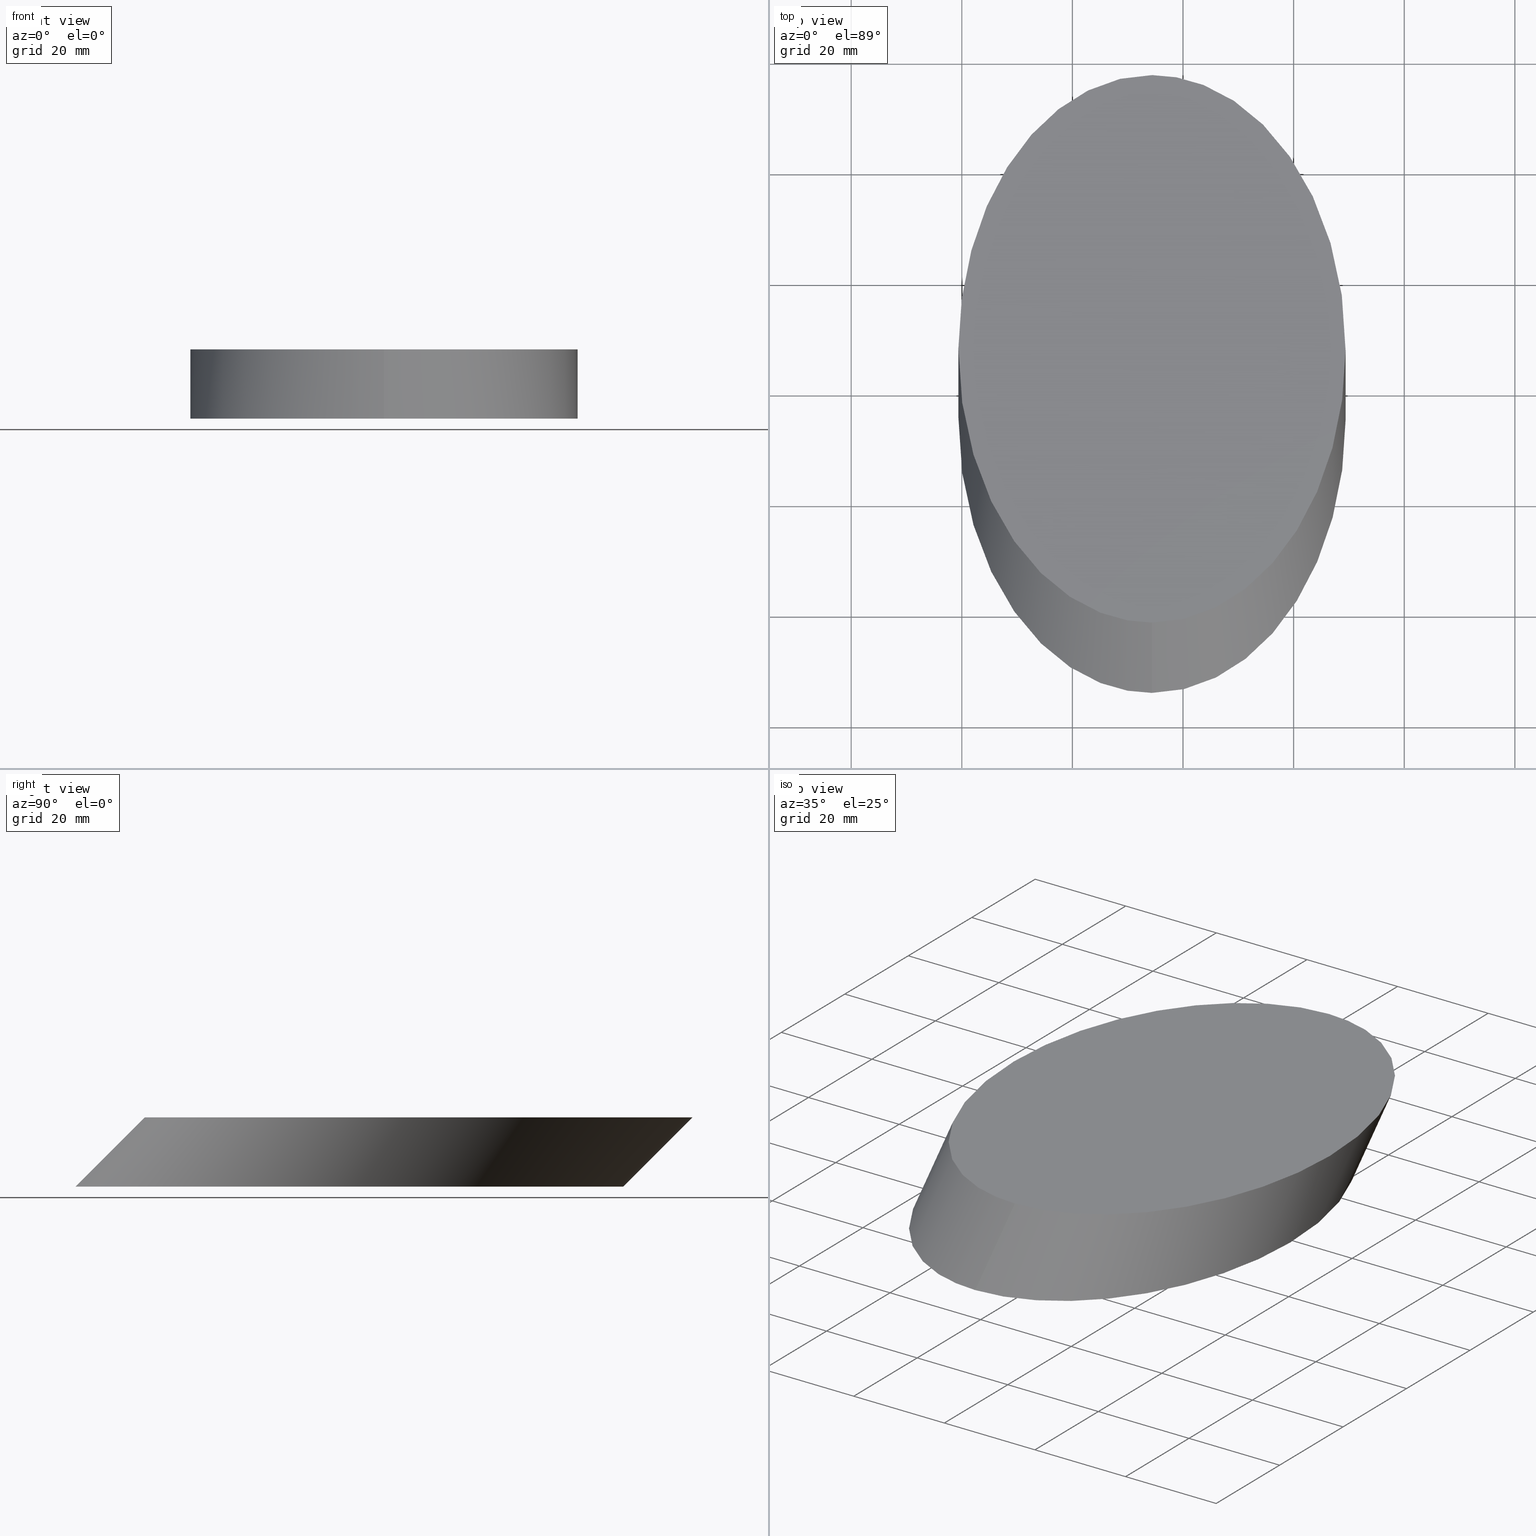
[diagram: canonical four-view strip — front | top / right | iso, engineering-drawing reading convention]
A machine part, canonical four-view strip (front | top / right | iso — engineering-drawing reading convention). The complete STEP part file that produces these views, byte-faithful:
ISO-10303-21;
HEADER;
FILE_DESCRIPTION (( 'STEP AP214' ),
    '1' );
FILE_NAME ('290006.STEP',
    '2019-08-12T02:05:35',
    ( '' ),
    ( '' ),
    'SwSTEP 2.0',
    'SolidWorks 2016',
    '' );
FILE_SCHEMA (( 'AUTOMOTIVE_DESIGN' ));
ENDSEC;

DATA;
#1 = MECHANICAL_DESIGN_GEOMETRIC_PRESENTATION_REPRESENTATION (  '', ( #143 ), #23 ) ;
#2 =( NAMED_UNIT ( * ) SI_UNIT ( $, .STERADIAN. ) SOLID_ANGLE_UNIT ( ) );
#3 = CARTESIAN_POINT ( 'NONE',  ( 54.39238298171605400, 85.29387153032210700, 0.0000000000000000000 ) ) ;
#4 = UNCERTAINTY_MEASURE_WITH_UNIT (LENGTH_MEASURE( 1.000000000000000100E-005 ), #102, 'distance_accuracy_value', 'NONE');
#5 = DIRECTION ( 'NONE',  ( 0.0000000000000000000, -0.7071067811865499000, -0.7071067811865452400 ) ) ;
#6 = APPLICATION_PROTOCOL_DEFINITION ( 'draft international standard', 'automotive_design', 1998, #96 ) ;
#7 = ORIENTED_EDGE ( 'NONE', *, *, #105, .F. ) ;
#8 = EDGE_CURVE ( 'NONE', #122, #132, #87, .T. ) ;
#9 = AXIS2_PLACEMENT_3D ( 'NONE', #16, #142, #119 ) ;
#10 = FACE_OUTER_BOUND ( 'NONE', #114, .T. ) ;
#11 = ORIENTED_EDGE ( 'NONE', *, *, #125, .F. ) ;
#12 = DIRECTION ( 'NONE',  ( 1.000000000000000000, 0.0000000000000000000, -0.0000000000000000000 ) ) ;
#13 = CARTESIAN_POINT ( 'NONE',  ( 54.39238298171604700, -13.71612846967790100, 0.0000000000000000000 ) ) ;
#14 = CARTESIAN_POINT ( 'NONE',  ( 54.39238298171605400, 35.78887153032210500, 0.0000000000000000000 ) ) ;
#15 = CARTESIAN_POINT ( 'NONE',  ( 54.39238298171605400, 97.79551942170030500, 12.50164789137812000 ) ) ;
#16 = CARTESIAN_POINT ( 'NONE',  ( 0.0000000000000000000, 0.0000000000000000000, 0.0000000000000000000 ) ) ;
#17 = AXIS2_PLACEMENT_3D ( 'NONE', #14, #24, #12 ) ;
#18 = VECTOR ( 'NONE', #30, 1000.000000000000100 ) ;
#19 =( LENGTH_UNIT ( ) NAMED_UNIT ( * ) SI_UNIT ( .MILLI., .METRE. ) );
#20 = ADVANCED_BREP_SHAPE_REPRESENTATION ( '290006', ( #110, #9 ), #81 ) ;
#21 = EDGE_LOOP ( 'NONE', ( #7, #25, #145, #86 ) ) ;
#22 = CLOSED_SHELL ( 'NONE', ( #94, #106, #98, #52 ) ) ;
#23 =( GEOMETRIC_REPRESENTATION_CONTEXT ( 3 ) GLOBAL_UNCERTAINTY_ASSIGNED_CONTEXT ( ( #141 ) ) GLOBAL_UNIT_ASSIGNED_CONTEXT ( ( #28, #72, #2 ) ) REPRESENTATION_CONTEXT ( 'NONE', 'WORKASPACE' ) );
#24 = DIRECTION ( 'NONE',  ( 0.0000000000000000000, 0.0000000000000000000, 1.000000000000000000 ) ) ;
#25 = ORIENTED_EDGE ( 'NONE', *, *, #125, .T. ) ;
#26 = CARTESIAN_POINT ( 'NONE',  ( -15.60761701828394100, 97.79551942170032000, 12.50164789137812200 ) ) ;
#27 = CARTESIAN_POINT ( 'NONE',  ( 124.3923829817160400, 97.79551942170032000, 12.50164789137812200 ) ) ;
#28 =( LENGTH_UNIT ( ) NAMED_UNIT ( * ) SI_UNIT ( .MILLI., .METRE. ) );
#29 = ORIENTED_EDGE ( 'NONE', *, *, #8, .T. ) ;
#30 = DIRECTION ( 'NONE',  ( 0.0000000000000000000, -0.7071067811865499000, -0.7071067811865452400 ) ) ;
#31 = APPLICATION_CONTEXT ( 'automotive_design' ) ;
#32 = COLOUR_RGB ( '',1.000000000000000000, 1.000000000000000000, 1.000000000000000000 ) ;
#33 = FILL_AREA_STYLE ('',( #91 ) ) ;
#34 = FACE_OUTER_BOUND ( 'NONE', #134, .T. ) ;
#35 = CARTESIAN_POINT ( 'NONE',  ( 54.39238298171604700, -1.214480578299696800, 12.50164789137812200 ) ) ;
#36 = CARTESIAN_POINT ( 'NONE',  ( 54.39238298171605400, 97.79551942170030500, 12.50164789137812000 ) ) ;
#37 =( BOUNDED_SURFACE ( )  B_SPLINE_SURFACE ( 3, 1, ( 
 ( #35, #148 ),
 ( #109, #57 ),
 ( #88, #38 ),
 ( #126, #111 ) ),
 .UNSPECIFIED., .F., .F., .F. ) 
 B_SPLINE_SURFACE_WITH_KNOTS ( ( 4, 4 ),
 ( 2, 2 ),
 ( 0.0000000000000000000, 1.000000000000000000 ),
 ( 0.0000000000000000000, 1.000000000000000000 ),
 .UNSPECIFIED. ) 
 GEOMETRIC_REPRESENTATION_ITEM ( )  RATIONAL_B_SPLINE_SURFACE ( (
 ( 1.000000000000000000, 1.000000000000000000),
 ( 0.3333333333333333700, 0.3333333333333333700),
 ( 0.3333333333333333700, 0.3333333333333333700),
 ( 1.000000000000000000, 1.000000000000000000) ) ) 
 REPRESENTATION_ITEM ( '' )  SURFACE ( )  );
#38 = CARTESIAN_POINT ( 'NONE',  ( 124.3923829817160400, 85.29387153032210700, -2.602085213965210200E-015 ) ) ;
#39 = FILL_AREA_STYLE_COLOUR ( '', #32 ) ;
#40 = STYLED_ITEM ( 'NONE', ( #68 ), #20 ) ;
#41 = CARTESIAN_POINT ( 'NONE',  ( 54.39238298171604700, -13.71612846967790100, 0.0000000000000000000 ) ) ;
#42 = VERTEX_POINT ( 'NONE', #13 ) ;
#43 = CARTESIAN_POINT ( 'NONE',  ( 54.39238298171605400, 97.79551942170030500, 12.50164789137812000 ) ) ;
#44 = PRODUCT_CONTEXT ( 'NONE', #96, 'mechanical' ) ;
#45 =( BOUNDED_CURVE ( )  B_SPLINE_CURVE ( 3, ( #41, #104, #130, #3 ),
 .UNSPECIFIED., .F., .T. ) 
 B_SPLINE_CURVE_WITH_KNOTS ( ( 4, 4 ),
 ( 3.141592653589793100, 6.283185307179586200 ),
 .UNSPECIFIED. ) 
 CURVE ( )  GEOMETRIC_REPRESENTATION_ITEM ( )  RATIONAL_B_SPLINE_CURVE ( ( 1.000000000000000000, 0.3333333333333333700, 0.3333333333333333700, 1.000000000000000000 ) ) 
 REPRESENTATION_ITEM ( '' )  );
#46 = DIRECTION ( 'NONE',  ( 1.000000000000000000, 0.0000000000000000000, -0.0000000000000000000 ) ) ;
#47 = SURFACE_SIDE_STYLE ('',( #61 ) ) ;
#48 = CARTESIAN_POINT ( 'NONE',  ( 54.39238298171604700, -1.214480578299696800, 12.50164789137812000 ) ) ;
#49 = CARTESIAN_POINT ( 'NONE',  ( 54.39238298171604700, -1.214480578299696800, 12.50164789137812000 ) ) ;
#50 = SURFACE_STYLE_FILL_AREA ( #33 ) ;
#51 = VERTEX_POINT ( 'NONE', #136 ) ;
#52 = ADVANCED_FACE ( 'NONE', ( #34 ), #147, .F. ) ;
#53 = LINE ( 'NONE', #15, #70 ) ;
#54 = CARTESIAN_POINT ( 'NONE',  ( -15.60761701828394100, 97.79551942170032000, 12.50164789137812200 ) ) ;
#55 = PRODUCT_DEFINITION_FORMATION_WITH_SPECIFIED_SOURCE ( '�κ�', '', #67, .NOT_KNOWN. ) ;
#56 = ORIENTED_EDGE ( 'NONE', *, *, #8, .F. ) ;
#57 = CARTESIAN_POINT ( 'NONE',  ( 124.3923829817160400, -13.71612846967791600, -2.602085213965210200E-015 ) ) ;
#58 = SURFACE_STYLE_USAGE ( .BOTH. , #47 ) ;
#59 =( GEOMETRIC_REPRESENTATION_CONTEXT ( 3 ) GLOBAL_UNCERTAINTY_ASSIGNED_CONTEXT ( ( #62 ) ) GLOBAL_UNIT_ASSIGNED_CONTEXT ( ( #19, #93, #76 ) ) REPRESENTATION_CONTEXT ( 'NONE', 'WORKASPACE' ) );
#60 = CARTESIAN_POINT ( 'NONE',  ( 124.3923829817160400, -1.214480578299708800, 12.50164789137812200 ) ) ;
#61 = SURFACE_STYLE_FILL_AREA ( #112 ) ;
#62 = UNCERTAINTY_MEASURE_WITH_UNIT (LENGTH_MEASURE( 1.000000000000000100E-005 ), #19, 'distance_accuracy_value', 'NONE');
#63 = SURFACE_STYLE_USAGE ( .BOTH. , #64 ) ;
#64 = SURFACE_SIDE_STYLE ('',( #50 ) ) ;
#65 = CARTESIAN_POINT ( 'NONE',  ( 54.39238298171604700, -1.214480578299696800, 12.50164789137812000 ) ) ;
#66 = CARTESIAN_POINT ( 'NONE',  ( -15.60761701828394100, 85.29387153032210700, 0.0000000000000000000 ) ) ;
#67 = PRODUCT ( '290006', '290006', '', ( #44 ) ) ;
#68 = PRESENTATION_STYLE_ASSIGNMENT (( #63 ) ) ;
#69 = CARTESIAN_POINT ( 'NONE',  ( 54.39238298171604700, -13.71612846967790100, 0.0000000000000000000 ) ) ;
#70 = VECTOR ( 'NONE', #5, 1000.000000000000100 ) ;
#71 = ORIENTED_EDGE ( 'NONE', *, *, #137, .F. ) ;
#72 =( NAMED_UNIT ( * ) PLANE_ANGLE_UNIT ( ) SI_UNIT ( $, .RADIAN. ) );
#73 = CARTESIAN_POINT ( 'NONE',  ( -15.60761701828394800, -1.214480578299684600, 12.50164789137812200 ) ) ;
#74 =( BOUNDED_CURVE ( )  B_SPLINE_CURVE ( 3, ( #99, #66, #115, #69 ),
 .UNSPECIFIED., .F., .T. ) 
 B_SPLINE_CURVE_WITH_KNOTS ( ( 4, 4 ),
 ( 0.0000000000000000000, 3.141592653589793100 ),
 .UNSPECIFIED. ) 
 CURVE ( )  GEOMETRIC_REPRESENTATION_ITEM ( )  RATIONAL_B_SPLINE_CURVE ( ( 1.000000000000000000, 0.3333333333333333700, 0.3333333333333333700, 1.000000000000000000 ) ) 
 REPRESENTATION_ITEM ( '' )  );
#75 = CARTESIAN_POINT ( 'NONE',  ( 54.39238298171605400, 97.79551942170030500, 12.50164789137812000 ) ) ;
#76 =( NAMED_UNIT ( * ) SI_UNIT ( $, .STERADIAN. ) SOLID_ANGLE_UNIT ( ) );
#77 = PRODUCT_DEFINITION_SHAPE ( 'NONE', 'NONE',  #107 ) ;
#78 = PRESENTATION_LAYER_ASSIGNMENT (  '', '', ( #40 ) ) ;
#79 = CARTESIAN_POINT ( 'NONE',  ( 54.39238298171604700, -1.214480578299696800, 12.50164789137812000 ) ) ;
#80 = SHAPE_DEFINITION_REPRESENTATION ( #77, #20 ) ;
#81 =( GEOMETRIC_REPRESENTATION_CONTEXT ( 3 ) GLOBAL_UNCERTAINTY_ASSIGNED_CONTEXT ( ( #4 ) ) GLOBAL_UNIT_ASSIGNED_CONTEXT ( ( #102, #128, #116 ) ) REPRESENTATION_CONTEXT ( 'NONE', 'WORKASPACE' ) );
#82 = EDGE_LOOP ( 'NONE', ( #29, #97 ) ) ;
#83 = PLANE ( 'NONE',  #118 ) ;
#84 = CARTESIAN_POINT ( 'NONE',  ( -15.60761701828394100, 85.29387153032210700, 0.0000000000000000000 ) ) ;
#85 = CARTESIAN_POINT ( 'NONE',  ( 54.39238298171605400, 97.79551942170030500, 12.50164789137812000 ) ) ;
#86 = ORIENTED_EDGE ( 'NONE', *, *, #123, .F. ) ;
#87 =( BOUNDED_CURVE ( )  B_SPLINE_CURVE ( 3, ( #36, #54, #124, #79 ),
 .UNSPECIFIED., .F., .F. ) 
 B_SPLINE_CURVE_WITH_KNOTS ( ( 4, 4 ),
 ( 0.0000000000000000000, 3.141592653589793100 ),
 .UNSPECIFIED. ) 
 CURVE ( )  GEOMETRIC_REPRESENTATION_ITEM ( )  RATIONAL_B_SPLINE_CURVE ( ( 1.000000000000000000, 0.3333333333333333700, 0.3333333333333333700, 1.000000000000000000 ) ) 
 REPRESENTATION_ITEM ( '' )  );
#88 = CARTESIAN_POINT ( 'NONE',  ( 124.3923829817160400, 97.79551942170032000, 12.50164789137812300 ) ) ;
#89 = DIRECTION ( 'NONE',  ( 0.0000000000000000000, 0.0000000000000000000, 1.000000000000000000 ) ) ;
#90 = FACE_OUTER_BOUND ( 'NONE', #21, .T. ) ;
#91 = FILL_AREA_STYLE_COLOUR ( '', #121 ) ;
#92 = CARTESIAN_POINT ( 'NONE',  ( 54.39238298171605400, 85.29387153032210700, 0.0000000000000000000 ) ) ;
#93 =( NAMED_UNIT ( * ) PLANE_ANGLE_UNIT ( ) SI_UNIT ( $, .RADIAN. ) );
#94 = ADVANCED_FACE ( 'NONE', ( #90 ), #37, .F. ) ;
#95 = EDGE_CURVE ( 'NONE', #51, #42, #74, .T. ) ;
#96 = APPLICATION_CONTEXT ( 'automotive_design' ) ;
#97 = ORIENTED_EDGE ( 'NONE', *, *, #105, .T. ) ;
#98 = ADVANCED_FACE ( 'NONE', ( #146 ), #83, .T. ) ;
#99 = CARTESIAN_POINT ( 'NONE',  ( 54.39238298171605400, 85.29387153032210700, 0.0000000000000000000 ) ) ;
#100 =( BOUNDED_CURVE ( )  B_SPLINE_CURVE ( 3, ( #65, #60, #27, #43 ),
 .UNSPECIFIED., .F., .T. ) 
 B_SPLINE_CURVE_WITH_KNOTS ( ( 4, 4 ),
 ( 3.141592653589793100, 6.283185307179586200 ),
 .UNSPECIFIED. ) 
 CURVE ( )  GEOMETRIC_REPRESENTATION_ITEM ( )  RATIONAL_B_SPLINE_CURVE ( ( 1.000000000000000000, 0.3333333333333333700, 0.3333333333333333700, 1.000000000000000000 ) ) 
 REPRESENTATION_ITEM ( '' )  );
#101 = CARTESIAN_POINT ( 'NONE',  ( 54.39238298171604700, -1.214480578299696800, 12.50164789137812000 ) ) ;
#102 =( LENGTH_UNIT ( ) NAMED_UNIT ( * ) SI_UNIT ( .MILLI., .METRE. ) );
#103 = ORIENTED_EDGE ( 'NONE', *, *, #123, .T. ) ;
#104 = CARTESIAN_POINT ( 'NONE',  ( 124.3923829817160400, -13.71612846967791400, 0.0000000000000000000 ) ) ;
#105 = EDGE_CURVE ( 'NONE', #132, #122, #100, .T. ) ;
#106 = ADVANCED_FACE ( 'NONE', ( #10 ), #131, .F. ) ;
#107 = PRODUCT_DEFINITION ( 'δ֪', '', #55, #108 ) ;
#108 = PRODUCT_DEFINITION_CONTEXT ( 'detailed design', #31, 'design' ) ;
#109 = CARTESIAN_POINT ( 'NONE',  ( 124.3923829817160400, -1.214480578299708800, 12.50164789137812300 ) ) ;
#110 = MANIFOLD_SOLID_BREP ( '͹̨-����2', #22 ) ;
#111 = CARTESIAN_POINT ( 'NONE',  ( 54.39238298171605400, 85.29387153032209300, -3.469446951953614200E-015 ) ) ;
#112 = FILL_AREA_STYLE ('',( #39 ) ) ;
#113 = CARTESIAN_POINT ( 'NONE',  ( 54.39238298171604700, -13.71612846967790000, 0.0000000000000000000 ) ) ;
#114 = EDGE_LOOP ( 'NONE', ( #11, #56, #103, #135 ) ) ;
#115 = CARTESIAN_POINT ( 'NONE',  ( -15.60761701828394800, -13.71612846967789200, 0.0000000000000000000 ) ) ;
#116 =( NAMED_UNIT ( * ) SI_UNIT ( $, .STERADIAN. ) SOLID_ANGLE_UNIT ( ) );
#117 = APPLICATION_PROTOCOL_DEFINITION ( 'draft international standard', 'automotive_design', 1998, #31 ) ;
#118 = AXIS2_PLACEMENT_3D ( 'NONE', #127, #89, #46 ) ;
#119 = DIRECTION ( 'NONE',  ( 1.000000000000000000, 0.0000000000000000000, 0.0000000000000000000 ) ) ;
#120 = PRESENTATION_STYLE_ASSIGNMENT (( #58 ) ) ;
#121 = COLOUR_RGB ( '',1.000000000000000000, 1.000000000000000000, 1.000000000000000000 ) ;
#122 = VERTEX_POINT ( 'NONE', #75 ) ;
#123 = EDGE_CURVE ( 'NONE', #122, #51, #53, .T. ) ;
#124 = CARTESIAN_POINT ( 'NONE',  ( -15.60761701828394800, -1.214480578299684600, 12.50164789137812200 ) ) ;
#125 = EDGE_CURVE ( 'NONE', #132, #42, #138, .T. ) ;
#126 = CARTESIAN_POINT ( 'NONE',  ( 54.39238298171605400, 97.79551942170030500, 12.50164789137812200 ) ) ;
#127 = CARTESIAN_POINT ( 'NONE',  ( 54.39238298171605400, 48.29051942170031000, 12.50164789137812000 ) ) ;
#128 =( NAMED_UNIT ( * ) PLANE_ANGLE_UNIT ( ) SI_UNIT ( $, .RADIAN. ) );
#129 = ORIENTED_EDGE ( 'NONE', *, *, #95, .F. ) ;
#130 = CARTESIAN_POINT ( 'NONE',  ( 124.3923829817160400, 85.29387153032210700, 0.0000000000000000000 ) ) ;
#131 =( BOUNDED_SURFACE ( )  B_SPLINE_SURFACE ( 3, 1, ( 
 ( #85, #92 ),
 ( #26, #84 ),
 ( #73, #140 ),
 ( #101, #113 ) ),
 .UNSPECIFIED., .F., .F., .F. ) 
 B_SPLINE_SURFACE_WITH_KNOTS ( ( 4, 4 ),
 ( 2, 2 ),
 ( 0.0000000000000000000, 1.000000000000000000 ),
 ( 0.0000000000000000000, 1.000000000000000000 ),
 .UNSPECIFIED. ) 
 GEOMETRIC_REPRESENTATION_ITEM ( )  RATIONAL_B_SPLINE_SURFACE ( (
 ( 1.000000000000000000, 1.000000000000000000),
 ( 0.3333333333333333700, 0.3333333333333333700),
 ( 0.3333333333333333700, 0.3333333333333333700),
 ( 1.000000000000000000, 1.000000000000000000) ) ) 
 REPRESENTATION_ITEM ( '' )  SURFACE ( )  );
#132 = VERTEX_POINT ( 'NONE', #49 ) ;
#133 = PRESENTATION_LAYER_ASSIGNMENT (  '', '', ( #143 ) ) ;
#134 = EDGE_LOOP ( 'NONE', ( #129, #71 ) ) ;
#135 = ORIENTED_EDGE ( 'NONE', *, *, #95, .T. ) ;
#136 = CARTESIAN_POINT ( 'NONE',  ( 54.39238298171605400, 85.29387153032210700, 0.0000000000000000000 ) ) ;
#137 = EDGE_CURVE ( 'NONE', #42, #51, #45, .T. ) ;
#138 = LINE ( 'NONE', #48, #18 ) ;
#139 = MECHANICAL_DESIGN_GEOMETRIC_PRESENTATION_REPRESENTATION (  '', ( #40 ), #59 ) ;
#140 = CARTESIAN_POINT ( 'NONE',  ( -15.60761701828394800, -13.71612846967788900, 0.0000000000000000000 ) ) ;
#141 = UNCERTAINTY_MEASURE_WITH_UNIT (LENGTH_MEASURE( 1.000000000000000100E-005 ), #28, 'distance_accuracy_value', 'NONE');
#142 = DIRECTION ( 'NONE',  ( 0.0000000000000000000, 0.0000000000000000000, 1.000000000000000000 ) ) ;
#143 = STYLED_ITEM ( 'NONE', ( #120 ), #110 ) ;
#144 = PRODUCT_RELATED_PRODUCT_CATEGORY ( 'part', '', ( #67 ) ) ;
#145 = ORIENTED_EDGE ( 'NONE', *, *, #137, .T. ) ;
#146 = FACE_OUTER_BOUND ( 'NONE', #82, .T. ) ;
#147 = PLANE ( 'NONE',  #17 ) ;
#148 = CARTESIAN_POINT ( 'NONE',  ( 54.39238298171604700, -13.71612846967790500, -3.469446951953614200E-015 ) ) ;
ENDSEC;
END-ISO-10303-21;
